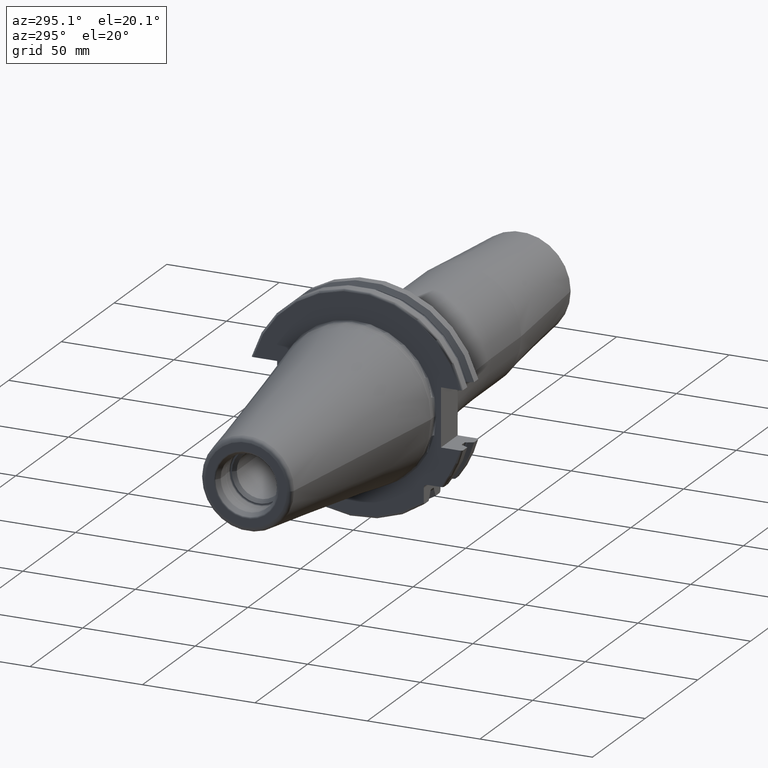
[diagram: clean part render]
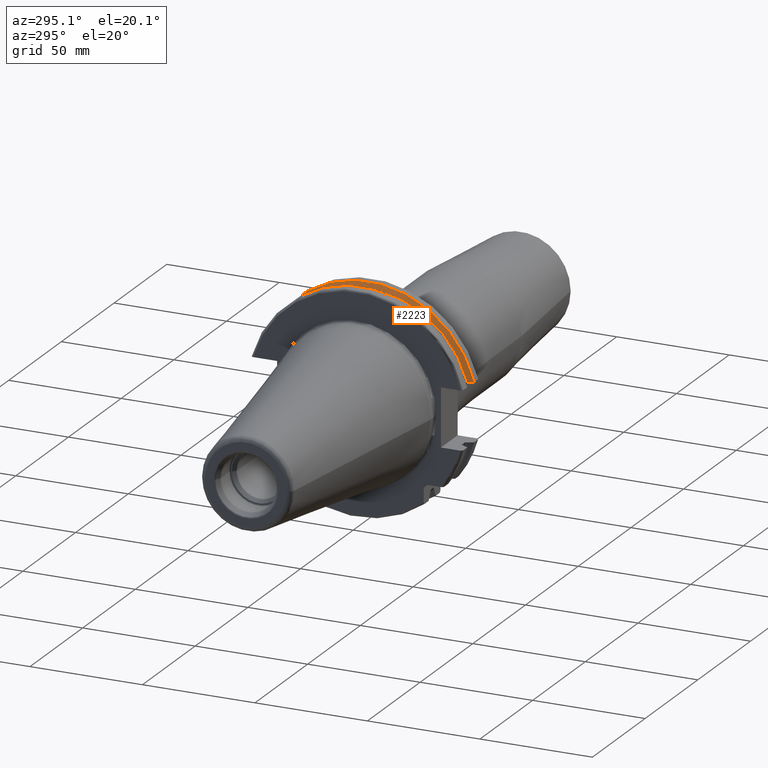
[diagram: same view with one face highlighted and labeled with its STEP entity id]
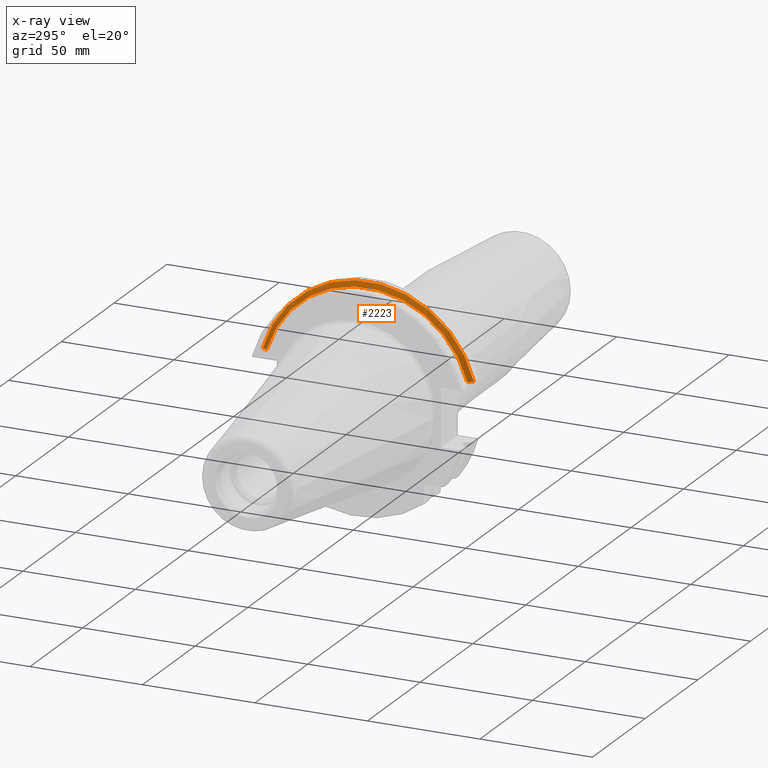
[diagram: x-ray of the same camera — body ghosted, the highlighted face saturated]
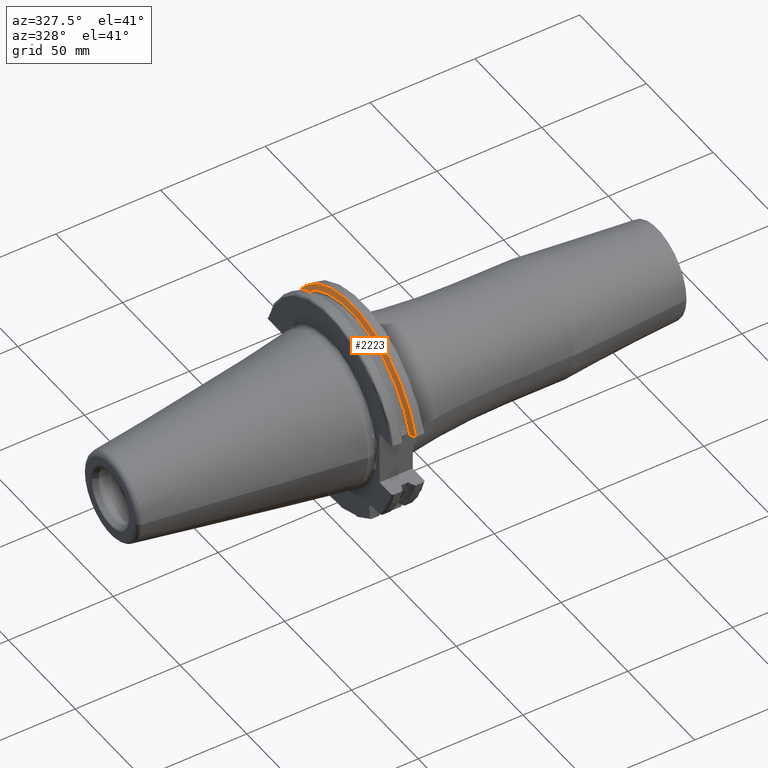
[diagram: same view with one face highlighted and labeled with its STEP entity id]
A machine part, auxiliary view. The second image highlights one B-rep face of the part: STEP entity #2223.
The next image is the same camera in x-ray: the body ghosted, the highlighted face saturated — about 0% of this face is hidden behind the body in this view.
A second angle (auxiliary view) of the same face is appended — the face is thin or edge-on in the first view.
In plain terms, the highlighted conical surface has half-angle 60 deg.
Its self-contained STEP definition (entity closure, byte-faithful):
#519=CARTESIAN_POINT('',(1.441537838583E1,4.699929686974E1,1.29E1));
#520=CARTESIAN_POINT('',(1.426451908496E1,4.672833723043E1,1.29E1));
#521=CARTESIAN_POINT('',(1.396501135619E1,4.619006057422E1,1.29E1));
#522=CARTESIAN_POINT('',(1.352242021955E1,4.539363402665E1,1.29E1));
#523=CARTESIAN_POINT('',(1.323173924582E1,4.486988275438E1,1.29E1));
#524=CARTESIAN_POINT('',(1.30875E1,4.460981716077E1,1.29E1));
#526=CARTESIAN_POINT('',(1.30875E1,-4.460981716077E1,1.29E1));
#527=CARTESIAN_POINT('',(1.323171622645E1,-4.486984125009E1,1.29E1));
#528=CARTESIAN_POINT('',(1.352236645045E1,-4.539353719098E1,1.29E1));
#529=CARTESIAN_POINT('',(1.396495664446E1,-4.618996220278E1,1.29E1));
#530=CARTESIAN_POINT('',(1.426449561388E1,-4.672829507383E1,1.29E1));
#531=CARTESIAN_POINT('',(1.441537838583E1,-4.699929686974E1,1.29E1));
#533=CARTESIAN_POINT('',(1.30875E1,0.E0,0.E0));
#534=DIRECTION('',(1.E0,0.E0,0.E0));
#535=DIRECTION('',(0.E0,9.606411165078E-1,2.777924499957E-1));
#536=AXIS2_PLACEMENT_3D('',#533,#534,#535);
#564=CARTESIAN_POINT('',(1.441537838583E1,0.E0,0.E0));
#565=DIRECTION('',(1.E0,0.E0,0.E0));
#566=DIRECTION('',(0.E0,9.643354064066E-1,2.646832521159E-1));
#567=AXIS2_PLACEMENT_3D('',#564,#565,#566);
#1365=CARTESIAN_POINT('',(1.30875E1,4.460981716077E1,1.29E1));
#1366=VERTEX_POINT('',#1365);
#1375=CARTESIAN_POINT('',(1.30875E1,-4.460981716077E1,1.29E1));
#1376=VERTEX_POINT('',#1375);
#1377=VERTEX_POINT('',#519);
#1378=VERTEX_POINT('',#531);
#2211=CARTESIAN_POINT('',(1.375143919291E1,0.E0,0.E0));
#2212=DIRECTION('',(1.E0,0.E0,0.E0));
#2213=DIRECTION('',(0.E0,-1.E0,0.E0));
#2214=AXIS2_PLACEMENT_3D('',#2211,#2212,#2213);
#2215=CONICAL_SURFACE('',#2214,4.758752358474E1,6.E1);
#2216=ORIENTED_EDGE('',*,*,#2013,.F.);
#2218=ORIENTED_EDGE('',*,*,#2217,.T.);
#2219=ORIENTED_EDGE('',*,*,#2065,.F.);
#2220=ORIENTED_EDGE('',*,*,#2173,.F.);
#2221=EDGE_LOOP('',(#2216,#2218,#2219,#2220));
#2222=FACE_OUTER_BOUND('',#2221,.F.);
#2223=ADVANCED_FACE('',(#2222),#2215,.T.);
#525=B_SPLINE_CURVE_WITH_KNOTS('',3,(#519,#520,#521,#522,#523,#524),
.UNSPECIFIED.,.F.,.F.,(4,1,1,4),(0.E0,3.333333333333E-1,6.666666666667E-1,1.E0),
.UNSPECIFIED.);
#532=B_SPLINE_CURVE_WITH_KNOTS('',3,(#526,#527,#528,#529,#530,#531),
.UNSPECIFIED.,.F.,.F.,(4,1,1,4),(0.E0,3.333333333333E-1,6.666666666667E-1,1.E0),
.UNSPECIFIED.);
#537=CIRCLE('',#536,4.643754716948E1);
#568=CIRCLE('',#567,4.87375E1);
#2013=EDGE_CURVE('',#1377,#1366,#525,.T.);
#2065=EDGE_CURVE('',#1376,#1378,#532,.T.);
#2173=EDGE_CURVE('',#1366,#1376,#537,.T.);
#2217=EDGE_CURVE('',#1377,#1378,#568,.T.);